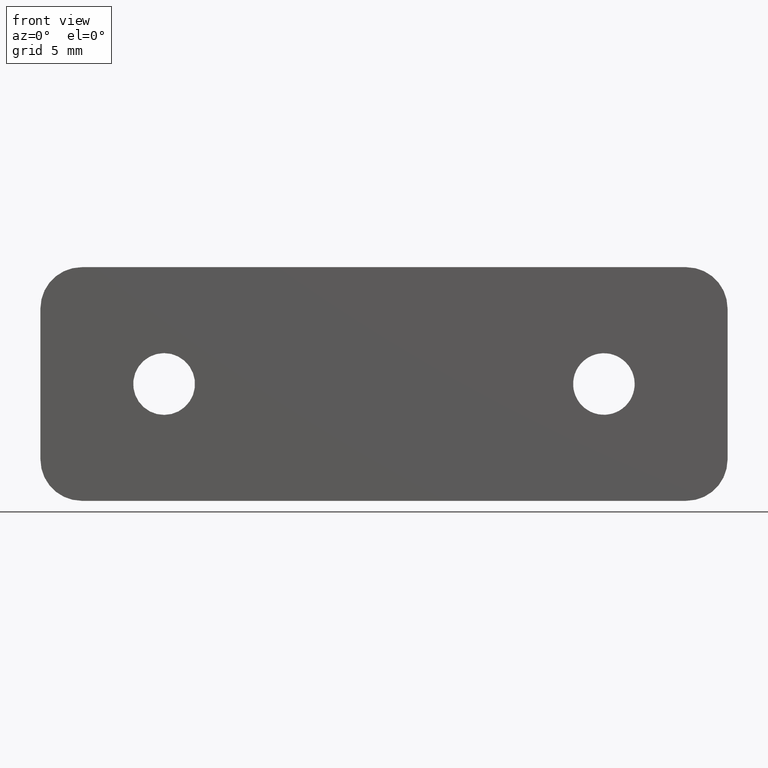
[diagram: clean part render]
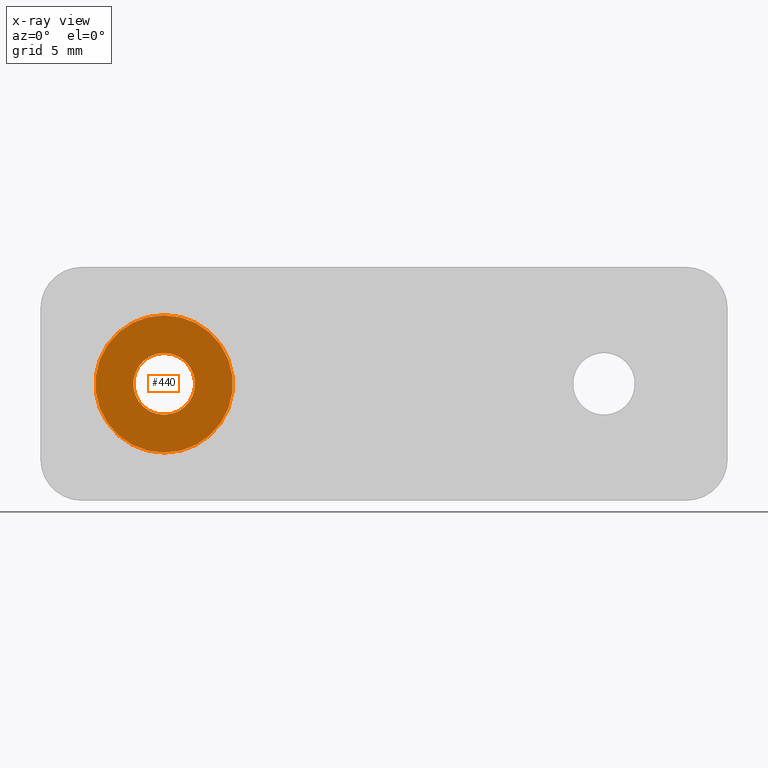
[diagram: x-ray — body ghosted, one internal face saturated and labeled with its STEP entity id]
A machine part, front view, then the same camera in x-ray: the body is ghosted and one INTERNAL B-rep face — a face not visible from any outside direction — is saturated and labeled: STEP entity #440.
In plain terms, the highlighted planar face has unit normal (0, 1, 0).
Its self-contained STEP definition (entity closure, byte-faithful):
#56=FACE_BOUND('',#121,.T.);
#84=FACE_OUTER_BOUND('',#120,.T.);
#120=EDGE_LOOP('',(#392));
#121=EDGE_LOOP('',(#393));
#145=CIRCLE('',#466,5.);
#146=CIRCLE('',#468,2.25);
#233=VERTEX_POINT('',#697);
#234=VERTEX_POINT('',#700);
#269=EDGE_CURVE('',#233,#233,#145,.T.);
#270=EDGE_CURVE('',#234,#234,#146,.T.);
#392=ORIENTED_EDGE('',*,*,#269,.T.);
#393=ORIENTED_EDGE('',*,*,#270,.F.);
#414=PLANE('',#491);
#440=ADVANCED_FACE('',(#84,#56),#414,.T.);
#466=AXIS2_PLACEMENT_3D('',#698,#550,#551);
#468=AXIS2_PLACEMENT_3D('',#701,#554,#555);
#491=AXIS2_PLACEMENT_3D('',#753,#620,#621);
#550=DIRECTION('center_axis',(0.,1.,0.));
#551=DIRECTION('ref_axis',(0.,0.,1.));
#554=DIRECTION('center_axis',(0.,1.,0.));
#555=DIRECTION('ref_axis',(0.,0.,1.));
#620=DIRECTION('center_axis',(0.,1.,0.));
#621=DIRECTION('ref_axis',(0.,0.,1.));
#697=CARTESIAN_POINT('',(16.,3.1,-5.));
#698=CARTESIAN_POINT('Origin',(16.,3.1,-3.91886975727153E-15));
#700=CARTESIAN_POINT('',(16.,3.1,2.25));
#701=CARTESIAN_POINT('Origin',(16.,3.1,-3.91886975727153E-15));
#753=CARTESIAN_POINT('Origin',(16.,3.1,-3.91886975727153E-15));